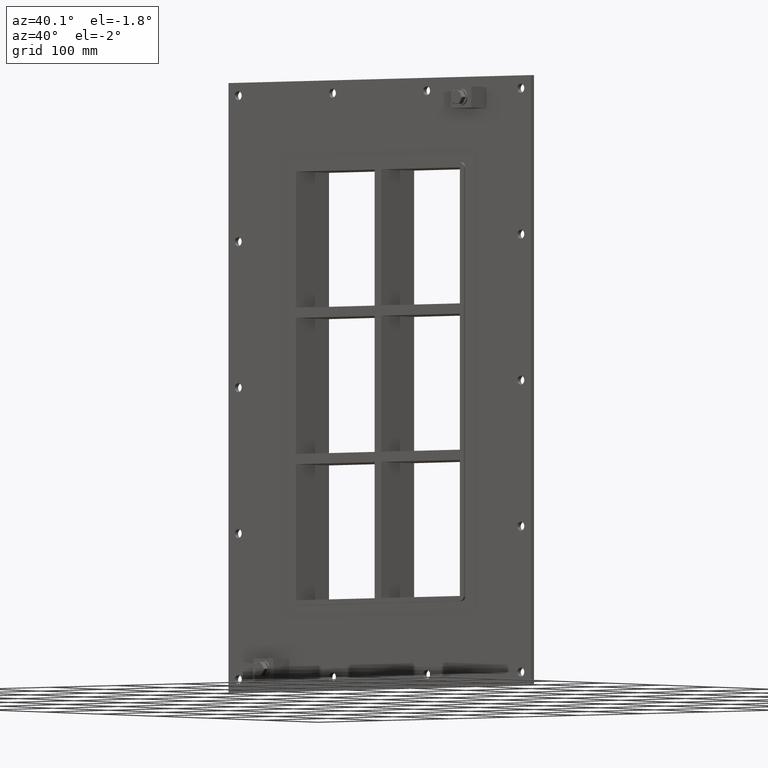
[diagram: clean part render]
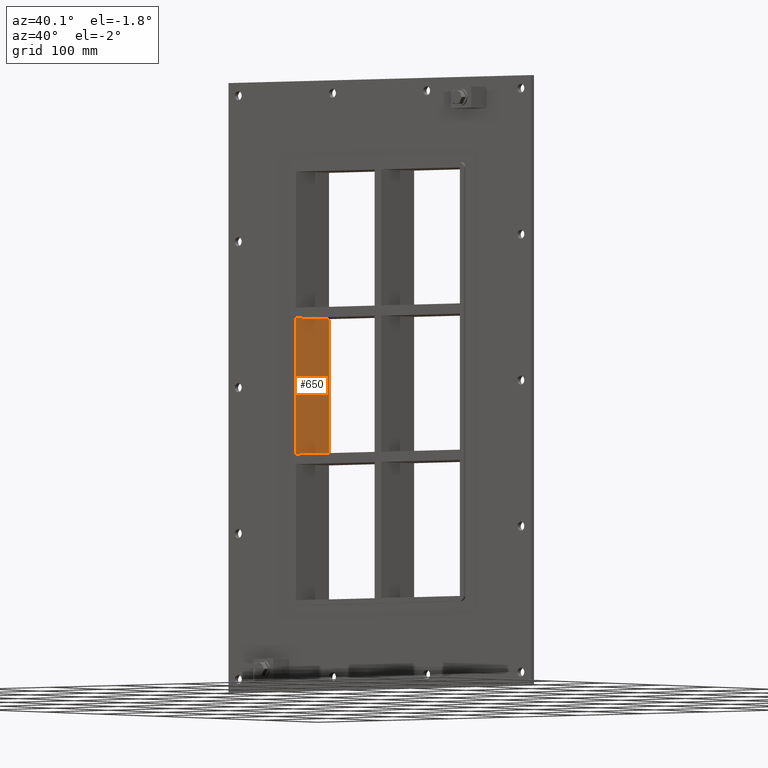
[diagram: same view with one face highlighted and labeled with its STEP entity id]
A machine part, auxiliary view. The second image highlights one B-rep face of the part: STEP entity #650.
In plain terms, the highlighted planar face has unit normal (-1, 0, 0).
Its self-contained STEP definition (entity closure, byte-faithful):
#595=CARTESIAN_POINT('',(-125.4999999999975,-3.0,79.749999999989114));
#596=VERTEX_POINT('',#595);
#603=CARTESIAN_POINT('',(-125.4999999999975,57.0,79.749999999989114));
#604=VERTEX_POINT('',#603);
#605=CARTESIAN_POINT('',(-125.5,57.000000000000007,79.749999999989086));
#606=DIRECTION('',(0.0,-1.0,0.0));
#607=VECTOR('',#606,60.000000000000007);
#608=LINE('',#605,#607);
#609=EDGE_CURVE('',#604,#596,#608,.T.);
#620=CARTESIAN_POINT('',(-125.5,0.0,-251.25));
#621=DIRECTION('',(-1.0,0.0,0.0));
#622=DIRECTION('',(0.0,0.0,1.0));
#623=AXIS2_PLACEMENT_3D('',#620,#621,#622);
#624=PLANE('',#623);
#625=ORIENTED_EDGE('',*,*,#609,.T.);
#626=CARTESIAN_POINT('',(-125.49999999999753,-3.0,-79.749999999999091));
#627=VERTEX_POINT('',#626);
#628=CARTESIAN_POINT('',(-125.5,-3.0,-79.749999999999091));
#629=DIRECTION('',(0.0,0.0,1.0));
#630=VECTOR('',#629,159.49999999998823);
#631=LINE('',#628,#630);
#632=EDGE_CURVE('',#627,#596,#631,.T.);
#633=ORIENTED_EDGE('',*,*,#632,.F.);
#634=CARTESIAN_POINT('',(-125.49999999999753,57.0,-79.749999999999091));
#635=VERTEX_POINT('',#634);
#636=CARTESIAN_POINT('',(-125.5,-3.0,-79.749999999999091));
#637=DIRECTION('',(0.0,1.0,0.0));
#638=VECTOR('',#637,60.000000000000007);
#639=LINE('',#636,#638);
#640=EDGE_CURVE('',#627,#635,#639,.T.);
#641=ORIENTED_EDGE('',*,*,#640,.T.);
#642=CARTESIAN_POINT('',(-125.5,57.0,79.749999999989129));
#643=DIRECTION('',(0.0,0.0,-1.0));
#644=VECTOR('',#643,159.49999999998823);
#645=LINE('',#642,#644);
#646=EDGE_CURVE('',#604,#635,#645,.T.);
#647=ORIENTED_EDGE('',*,*,#646,.F.);
#648=EDGE_LOOP('',(#625,#633,#641,#647));
#649=FACE_OUTER_BOUND('',#648,.T.);
#650=ADVANCED_FACE('',(#649),#624,.F.);